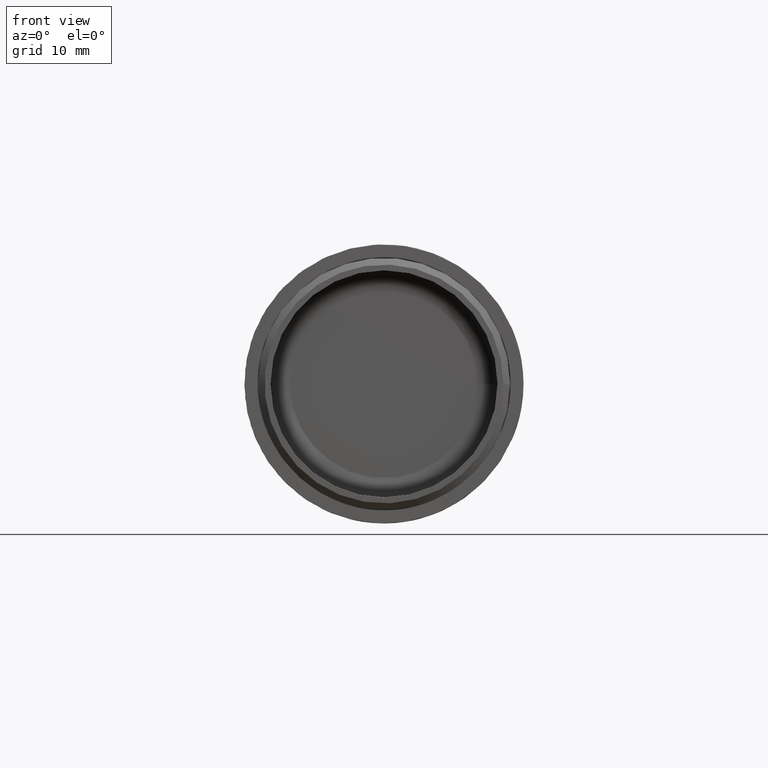
[diagram: clean part render]
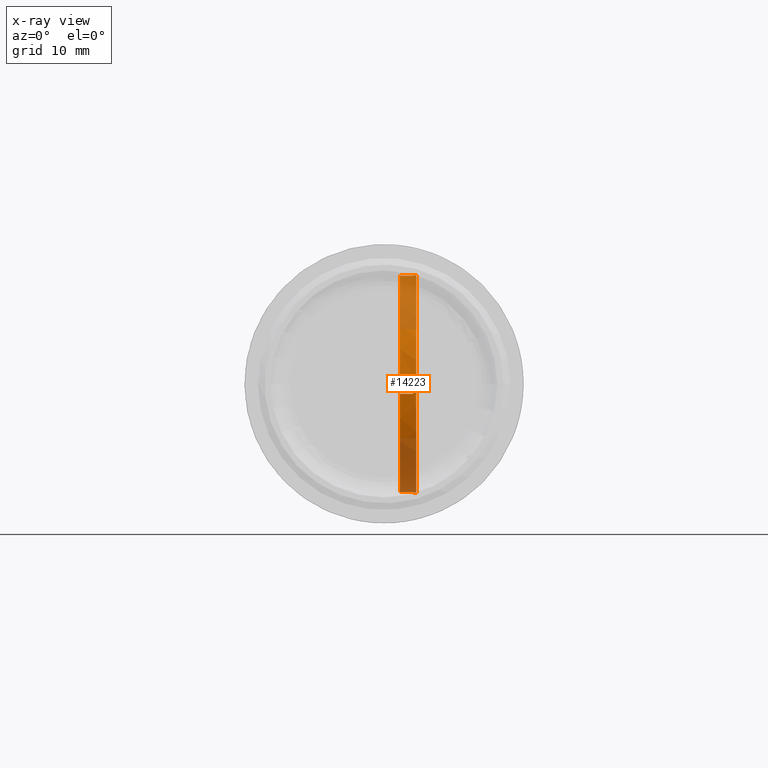
[diagram: x-ray — body ghosted, one internal face saturated and labeled with its STEP entity id]
A machine part, front view, then the same camera in x-ray: the body is ghosted and one INTERNAL B-rep face — a face not visible from any outside direction — is saturated and labeled: STEP entity #14223.
In plain terms, the highlighted cylindrical surface (bore or boss wall) has radius 16.5 mm, axis along (1, -0, -0).
Its self-contained STEP definition (entity closure, byte-faithful):
#122 = EDGE_CURVE ( 'NONE', #7852, #11476, #212, .T. ) ;
#137 = CIRCLE ( 'NONE', #3991, 16.50000000000000400 ) ;
#140 = DIRECTION ( 'NONE',  ( 2.628368902995161500E-016, 0.0000000000000000000, -1.000000000000000000 ) ) ;
#209 = VERTEX_POINT ( 'NONE', #12606 ) ;
#212 = CIRCLE ( 'NONE', #560, 16.50000000000000400 ) ;
#218 = LINE ( 'NONE', #1934, #17770 ) ;
#404 = VECTOR ( 'NONE', #17941, 1000.000000000000000 ) ;
#551 = EDGE_CURVE ( 'NONE', #17644, #3868, #7235, .T. ) ;
#560 = AXIS2_PLACEMENT_3D ( 'NONE', #11732, #15956, #3144 ) ;
#650 = ORIENTED_EDGE ( 'NONE', *, *, #7570, .F. ) ;
#858 = LINE ( 'NONE', #7730, #404 ) ;
#956 = CARTESIAN_POINT ( 'NONE',  ( 4.399999999999993200, 25.29999999999999700, 16.43167672515499700 ) ) ;
#1022 = CARTESIAN_POINT ( 'NONE',  ( 4.399999999999997700, 43.23167672515499000, 1.500000000000001600 ) ) ;
#1024 = VERTEX_POINT ( 'NONE', #10433 ) ;
#1103 = EDGE_CURVE ( 'NONE', #17644, #14414, #3853, .T. ) ;
#1209 = DIRECTION ( 'NONE',  ( -1.000000000000000000, -2.465190328815661900E-032, -2.380153423516082800E-016 ) ) ;
#1357 = ORIENTED_EDGE ( 'NONE', *, *, #3453, .T. ) ;
#1388 = ORIENTED_EDGE ( 'NONE', *, *, #1103, .T. ) ;
#1512 = CARTESIAN_POINT ( 'NONE',  ( 2.399999999999997700, 10.36832327484501100, -1.499999999999998900 ) ) ;
#1856 = AXIS2_PLACEMENT_3D ( 'NONE', #5306, #4108, #11252 ) ;
#1934 = CARTESIAN_POINT ( 'NONE',  ( 1.400000000000001900, 28.29999999999999700, -16.43167672515497600 ) ) ;
#2022 = VERTEX_POINT ( 'NONE', #1022 ) ;
#2174 = VECTOR ( 'NONE', #17772, 1000.000000000000000 ) ;
#2482 = CARTESIAN_POINT ( 'NONE',  ( 4.900000000000000400, 26.79999999999999700, 16.50000000000001400 ) ) ;
#2541 = ORIENTED_EDGE ( 'NONE', *, *, #3332, .T. ) ;
#2650 = CIRCLE ( 'NONE', #17698, 16.50000000000000400 ) ;
#2877 = DIRECTION ( 'NONE',  ( 1.000000000000000000, -3.726309866894354800E-032, 2.448801383671572500E-016 ) ) ;
#3064 = DIRECTION ( 'NONE',  ( -1.000000000000000000, -2.465190328815661900E-032, -2.380153423516082800E-016 ) ) ;
#3144 = DIRECTION ( 'NONE',  ( 2.628368902995161500E-016, 0.0000000000000000000, -1.000000000000000000 ) ) ;
#3247 = ORIENTED_EDGE ( 'NONE', *, *, #4195, .T. ) ;
#3332 = EDGE_CURVE ( 'NONE', #13215, #4501, #137, .T. ) ;
#3341 = CIRCLE ( 'NONE', #5640, 16.50000000000000400 ) ;
#3398 = DIRECTION ( 'NONE',  ( 2.628368902995161500E-016, 0.0000000000000000000, -1.000000000000000000 ) ) ;
#3453 = EDGE_CURVE ( 'NONE', #14728, #17494, #2650, .T. ) ;
#3466 = AXIS2_PLACEMENT_3D ( 'NONE', #12996, #5872, #4365 ) ;
#3469 = ORIENTED_EDGE ( 'NONE', *, *, #10933, .T. ) ;
#3853 = CIRCLE ( 'NONE', #5417, 16.50000000000000400 ) ;
#3868 = VERTEX_POINT ( 'NONE', #17686 ) ;
#3958 = CARTESIAN_POINT ( 'NONE',  ( 4.399999999999993200, 28.29999999999999700, 16.43167672515499700 ) ) ;
#3991 = AXIS2_PLACEMENT_3D ( 'NONE', #5036, #15071, #6494 ) ;
#4108 = DIRECTION ( 'NONE',  ( 1.000000000000000000, -3.726309866894354800E-032, 2.448801383671572500E-016 ) ) ;
#4185 = LINE ( 'NONE', #5375, #8704 ) ;
#4195 = EDGE_CURVE ( 'NONE', #4202, #13077, #4678, .T. ) ;
#4202 = VERTEX_POINT ( 'NONE', #10837 ) ;
#4365 = DIRECTION ( 'NONE',  ( 2.628368902995161500E-016, 0.0000000000000000000, -1.000000000000000000 ) ) ;
#4501 = VERTEX_POINT ( 'NONE', #18110 ) ;
#4678 = CIRCLE ( 'NONE', #18668, 16.50000000000000400 ) ;
#4698 = VERTEX_POINT ( 'NONE', #10064 ) ;
#4846 = EDGE_CURVE ( 'NONE', #14414, #11476, #12062, .T. ) ;
#4981 = AXIS2_PLACEMENT_3D ( 'NONE', #12905, #3064, #15933 ) ;
#5022 = EDGE_CURVE ( 'NONE', #11104, #6583, #14514, .T. ) ;
#5036 = CARTESIAN_POINT ( 'NONE',  ( 2.399999999999997700, 26.79999999999999700, 9.565114661027472100E-015 ) ) ;
#5306 = CARTESIAN_POINT ( 'NONE',  ( 4.399999999999997700, 26.79999999999999700, 1.005487493776178700E-014 ) ) ;
#5375 = CARTESIAN_POINT ( 'NONE',  ( 1.399999999999993200, 28.29999999999999700, 16.43167672515499700 ) ) ;
#5383 = CARTESIAN_POINT ( 'NONE',  ( 4.899999999999997700, 26.79999999999999700, 1.017731500694536500E-014 ) ) ;
#5417 = AXIS2_PLACEMENT_3D ( 'NONE', #12254, #8025, #15211 ) ;
#5514 = DIRECTION ( 'NONE',  ( 2.628368902995161500E-016, 0.0000000000000000000, -1.000000000000000000 ) ) ;
#5542 = ORIENTED_EDGE ( 'NONE', *, *, #14742, .F. ) ;
#5640 = AXIS2_PLACEMENT_3D ( 'NONE', #17655, #7577, #3398 ) ;
#5765 = CARTESIAN_POINT ( 'NONE',  ( 2.400000000000001700, 28.29999999999999700, -16.43167672515497600 ) ) ;
#5872 = DIRECTION ( 'NONE',  ( 1.000000000000000000, -3.726309866894354800E-032, 2.448801383671572500E-016 ) ) ;
#5892 = DIRECTION ( 'NONE',  ( 2.628368902995161500E-016, 0.0000000000000000000, -1.000000000000000000 ) ) ;
#5895 = ORIENTED_EDGE ( 'NONE', *, *, #7962, .T. ) ;
#6212 = EDGE_LOOP ( 'NONE', ( #3247, #18601 ) ) ;
#6494 = DIRECTION ( 'NONE',  ( 2.365532012695645700E-016, 0.0000000000000000000, -1.000000000000000000 ) ) ;
#6583 = VERTEX_POINT ( 'NONE', #5765 ) ;
#7052 = LINE ( 'NONE', #12369, #10610 ) ;
#7223 = CIRCLE ( 'NONE', #1856, 16.50000000000000400 ) ;
#7235 = LINE ( 'NONE', #14354, #8370 ) ;
#7458 = CIRCLE ( 'NONE', #3466, 16.50000000000000400 ) ;
#7570 = EDGE_CURVE ( 'NONE', #11104, #209, #10004, .T. ) ;
#7577 = DIRECTION ( 'NONE',  ( 1.000000000000000000, -3.726309866894354800E-032, 2.448801383671572500E-016 ) ) ;
#7730 = CARTESIAN_POINT ( 'NONE',  ( 1.400000000000001900, 25.29999999999999700, -16.43167672515497600 ) ) ;
#7768 = LINE ( 'NONE', #14407, #17381 ) ;
#7852 = VERTEX_POINT ( 'NONE', #3958 ) ;
#7875 = DIRECTION ( 'NONE',  ( 1.000000000000000000, -3.726309866894354800E-032, 2.448801383671572500E-016 ) ) ;
#7881 = CARTESIAN_POINT ( 'NONE',  ( 1.399999999999993200, 25.29999999999999700, 16.43167672515499700 ) ) ;
#7962 = EDGE_CURVE ( 'NONE', #4501, #2022, #7768, .T. ) ;
#8025 = DIRECTION ( 'NONE',  ( -1.000000000000000000, -2.465190328815661900E-032, -2.380153423516082800E-016 ) ) ;
#8267 = DIRECTION ( 'NONE',  ( 1.000000000000000000, -3.726309866894354800E-032, 2.448801383671572500E-016 ) ) ;
#8356 = EDGE_LOOP ( 'NONE', ( #13706, #1388, #17106, #18682, #15607, #2541, #5895, #17685, #650, #15138, #3469, #15800, #15476, #1357, #8803, #5542 ) ) ;
#8370 = VECTOR ( 'NONE', #11648, 1000.000000000000000 ) ;
#8704 = VECTOR ( 'NONE', #16920, 1000.000000000000000 ) ;
#8803 = ORIENTED_EDGE ( 'NONE', *, *, #9849, .T. ) ;
#9154 = DIRECTION ( 'NONE',  ( 1.000000000000000000, -3.726309866894354800E-032, 2.448801383671572500E-016 ) ) ;
#9849 = EDGE_CURVE ( 'NONE', #17494, #17996, #7052, .T. ) ;
#10004 = LINE ( 'NONE', #16381, #18547 ) ;
#10064 = CARTESIAN_POINT ( 'NONE',  ( 4.400000000000002100, 25.29999999999999700, -16.43167672515497600 ) ) ;
#10433 = CARTESIAN_POINT ( 'NONE',  ( 4.400000000000002100, 28.29999999999999700, -16.43167672515497600 ) ) ;
#10610 = VECTOR ( 'NONE', #8267, 1000.000000000000000 ) ;
#10723 = CIRCLE ( 'NONE', #17675, 16.50000000000000400 ) ;
#10837 = CARTESIAN_POINT ( 'NONE',  ( 4.900000000000002100, 26.80000000000000100, -16.49999999999999300 ) ) ;
#10933 = EDGE_CURVE ( 'NONE', #6583, #1024, #218, .T. ) ;
#11104 = VERTEX_POINT ( 'NONE', #18231 ) ;
#11252 = DIRECTION ( 'NONE',  ( 2.628368902995161500E-016, 0.0000000000000000000, -1.000000000000000000 ) ) ;
#11476 = VERTEX_POINT ( 'NONE', #956 ) ;
#11583 = CARTESIAN_POINT ( 'NONE',  ( 4.399999999999997700, 26.79999999999999700, 1.005487493776178700E-014 ) ) ;
#11648 = DIRECTION ( 'NONE',  ( 1.000000000000000000, -3.726309866894354800E-032, 2.448801383671572500E-016 ) ) ;
#11732 = CARTESIAN_POINT ( 'NONE',  ( 4.399999999999997700, 26.79999999999999700, 1.005487493776178700E-014 ) ) ;
#12062 = LINE ( 'NONE', #7881, #2174 ) ;
#12254 = CARTESIAN_POINT ( 'NONE',  ( 2.399999999999997700, 26.79999999999999700, 9.565114661027472100E-015 ) ) ;
#12369 = CARTESIAN_POINT ( 'NONE',  ( 1.399999999999997700, 10.36832327484501100, -1.499999999999999100 ) ) ;
#12606 = CARTESIAN_POINT ( 'NONE',  ( 4.399999999999997700, 43.23167672515499000, -1.499999999999998400 ) ) ;
#12905 = CARTESIAN_POINT ( 'NONE',  ( 2.399999999999997700, 26.79999999999999700, 9.565114661027472100E-015 ) ) ;
#12954 = DIRECTION ( 'NONE',  ( 1.000000000000000000, -3.726309866894354800E-032, 2.448801383671572500E-016 ) ) ;
#12996 = CARTESIAN_POINT ( 'NONE',  ( 4.399999999999997700, 26.79999999999999700, 1.005487493776178700E-014 ) ) ;
#13063 = CARTESIAN_POINT ( 'NONE',  ( 4.399999999999997700, 10.36832327484501100, -1.499999999999998400 ) ) ;
#13077 = VERTEX_POINT ( 'NONE', #2482 ) ;
#13215 = VERTEX_POINT ( 'NONE', #14142 ) ;
#13247 = EDGE_CURVE ( 'NONE', #209, #2022, #7458, .T. ) ;
#13509 = CARTESIAN_POINT ( 'NONE',  ( 2.399999999999993700, 25.29999999999999700, 16.43167672515499700 ) ) ;
#13679 = EDGE_CURVE ( 'NONE', #4698, #1024, #7223, .T. ) ;
#13706 = ORIENTED_EDGE ( 'NONE', *, *, #551, .F. ) ;
#14103 = DIRECTION ( 'NONE',  ( 2.365532012695645700E-016, 0.0000000000000000000, -1.000000000000000000 ) ) ;
#14142 = CARTESIAN_POINT ( 'NONE',  ( 2.399999999999993700, 28.29999999999999700, 16.43167672515499700 ) ) ;
#14223 = ADVANCED_FACE ( 'NONE', ( #18198, #18643 ), #17065, .F. ) ;
#14229 = DIRECTION ( 'NONE',  ( 1.000000000000000000, -3.726309866894354800E-032, 2.448801383671572500E-016 ) ) ;
#14354 = CARTESIAN_POINT ( 'NONE',  ( 1.399999999999997700, 10.36832327484501100, 1.500000000000000900 ) ) ;
#14407 = CARTESIAN_POINT ( 'NONE',  ( 1.399999999999997700, 43.23167672515499000, 1.500000000000000900 ) ) ;
#14414 = VERTEX_POINT ( 'NONE', #13509 ) ;
#14427 = EDGE_CURVE ( 'NONE', #14728, #4698, #858, .T. ) ;
#14514 = CIRCLE ( 'NONE', #4981, 16.50000000000000400 ) ;
#14728 = VERTEX_POINT ( 'NONE', #17591 ) ;
#14742 = EDGE_CURVE ( 'NONE', #3868, #17996, #3341, .T. ) ;
#15071 = DIRECTION ( 'NONE',  ( -1.000000000000000000, -2.465190328815661900E-032, -2.380153423516082800E-016 ) ) ;
#15138 = ORIENTED_EDGE ( 'NONE', *, *, #5022, .T. ) ;
#15211 = DIRECTION ( 'NONE',  ( 2.365532012695645700E-016, 8.410780489584517700E-016, -1.000000000000000000 ) ) ;
#15476 = ORIENTED_EDGE ( 'NONE', *, *, #14427, .F. ) ;
#15488 = DIRECTION ( 'NONE',  ( 1.000000000000000000, -3.726309866894354800E-032, 2.448801383671572500E-016 ) ) ;
#15607 = ORIENTED_EDGE ( 'NONE', *, *, #17063, .F. ) ;
#15622 = AXIS2_PLACEMENT_3D ( 'NONE', #11583, #14229, #5892 ) ;
#15800 = ORIENTED_EDGE ( 'NONE', *, *, #13679, .F. ) ;
#15933 = DIRECTION ( 'NONE',  ( 2.365532012695645700E-016, 8.410780489584517700E-016, -1.000000000000000000 ) ) ;
#15956 = DIRECTION ( 'NONE',  ( 1.000000000000000000, -3.726309866894354800E-032, 2.448801383671572500E-016 ) ) ;
#16338 = EDGE_CURVE ( 'NONE', #13077, #4202, #10723, .T. ) ;
#16381 = CARTESIAN_POINT ( 'NONE',  ( 1.399999999999997700, 43.23167672515499000, -1.499999999999999100 ) ) ;
#16920 = DIRECTION ( 'NONE',  ( 1.000000000000000000, -3.726309866894354800E-032, 2.448801383671572500E-016 ) ) ;
#17063 = EDGE_CURVE ( 'NONE', #13215, #7852, #4185, .T. ) ;
#17065 = CYLINDRICAL_SURFACE ( 'NONE', #15622, 16.50000000000000400 ) ;
#17106 = ORIENTED_EDGE ( 'NONE', *, *, #4846, .T. ) ;
#17381 = VECTOR ( 'NONE', #12954, 1000.000000000000000 ) ;
#17448 = CARTESIAN_POINT ( 'NONE',  ( 4.899999999999997700, 26.79999999999999700, 1.017731500694536500E-014 ) ) ;
#17494 = VERTEX_POINT ( 'NONE', #1512 ) ;
#17591 = CARTESIAN_POINT ( 'NONE',  ( 2.400000000000001700, 25.29999999999999700, -16.43167672515497600 ) ) ;
#17644 = VERTEX_POINT ( 'NONE', #17952 ) ;
#17655 = CARTESIAN_POINT ( 'NONE',  ( 4.399999999999997700, 26.79999999999999700, 1.005487493776178700E-014 ) ) ;
#17675 = AXIS2_PLACEMENT_3D ( 'NONE', #17448, #2877, #140 ) ;
#17685 = ORIENTED_EDGE ( 'NONE', *, *, #13247, .F. ) ;
#17686 = CARTESIAN_POINT ( 'NONE',  ( 4.399999999999997700, 10.36832327484501100, 1.500000000000001600 ) ) ;
#17698 = AXIS2_PLACEMENT_3D ( 'NONE', #18471, #1209, #14103 ) ;
#17770 = VECTOR ( 'NONE', #9154, 1000.000000000000000 ) ;
#17772 = DIRECTION ( 'NONE',  ( 1.000000000000000000, -3.726309866894354800E-032, 2.448801383671572500E-016 ) ) ;
#17941 = DIRECTION ( 'NONE',  ( 1.000000000000000000, -3.726309866894354800E-032, 2.448801383671572500E-016 ) ) ;
#17952 = CARTESIAN_POINT ( 'NONE',  ( 2.399999999999997200, 10.36832327484501100, 1.500000000000001100 ) ) ;
#17996 = VERTEX_POINT ( 'NONE', #13063 ) ;
#18110 = CARTESIAN_POINT ( 'NONE',  ( 2.399999999999997700, 43.23167672515499000, 1.500000000000001100 ) ) ;
#18198 = FACE_OUTER_BOUND ( 'NONE', #8356, .T. ) ;
#18231 = CARTESIAN_POINT ( 'NONE',  ( 2.399999999999998100, 43.23167672515499000, -1.499999999999998900 ) ) ;
#18471 = CARTESIAN_POINT ( 'NONE',  ( 2.399999999999997700, 26.79999999999999700, 9.565114661027472100E-015 ) ) ;
#18547 = VECTOR ( 'NONE', #7875, 1000.000000000000000 ) ;
#18601 = ORIENTED_EDGE ( 'NONE', *, *, #16338, .T. ) ;
#18643 = FACE_OUTER_BOUND ( 'NONE', #6212, .T. ) ;
#18668 = AXIS2_PLACEMENT_3D ( 'NONE', #5383, #15488, #5514 ) ;
#18682 = ORIENTED_EDGE ( 'NONE', *, *, #122, .F. ) ;